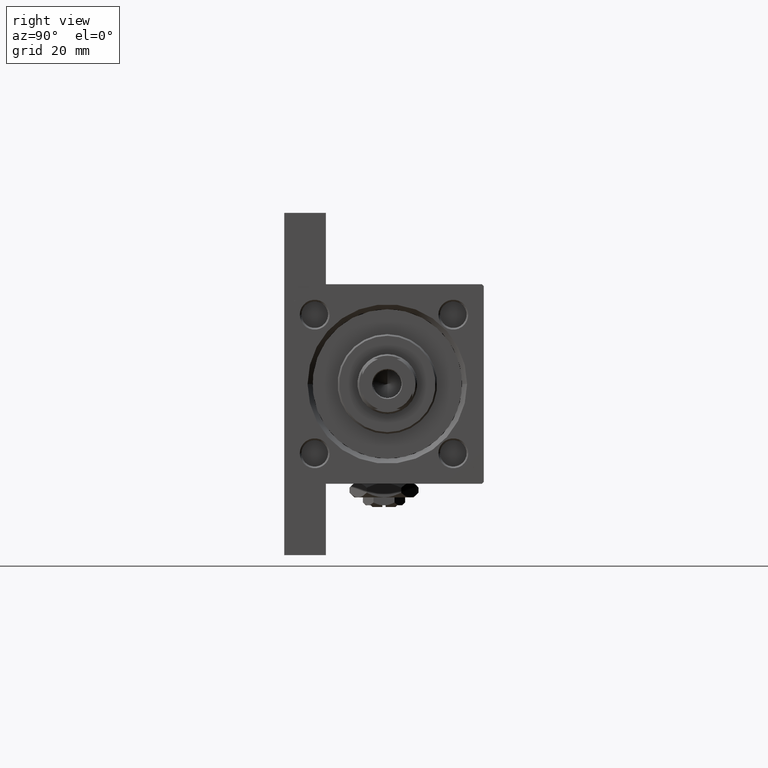
[diagram: clean part render]
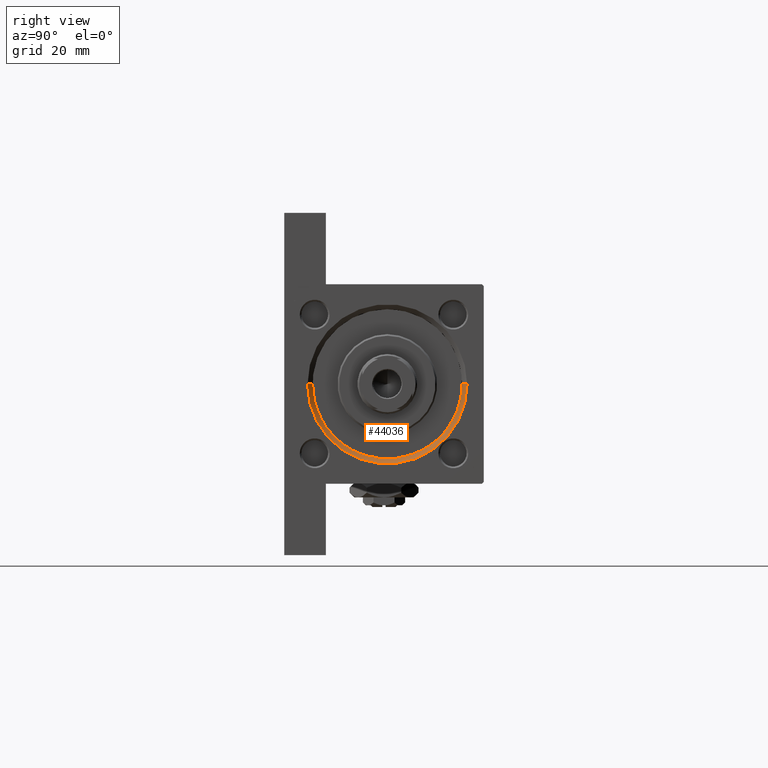
[diagram: same view with one face highlighted and labeled with its STEP entity id]
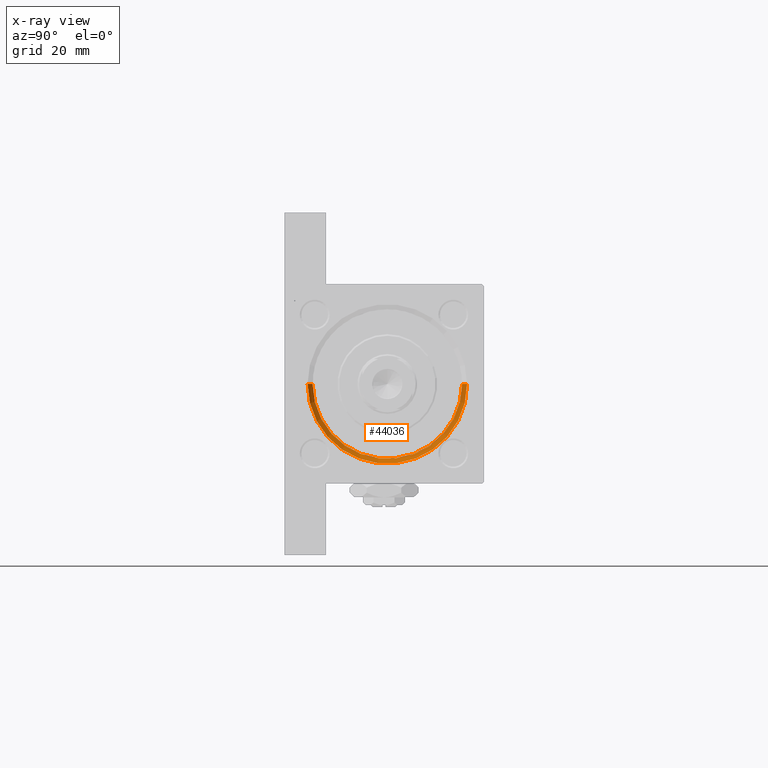
[diagram: x-ray of the same camera — body ghosted, the highlighted face saturated]
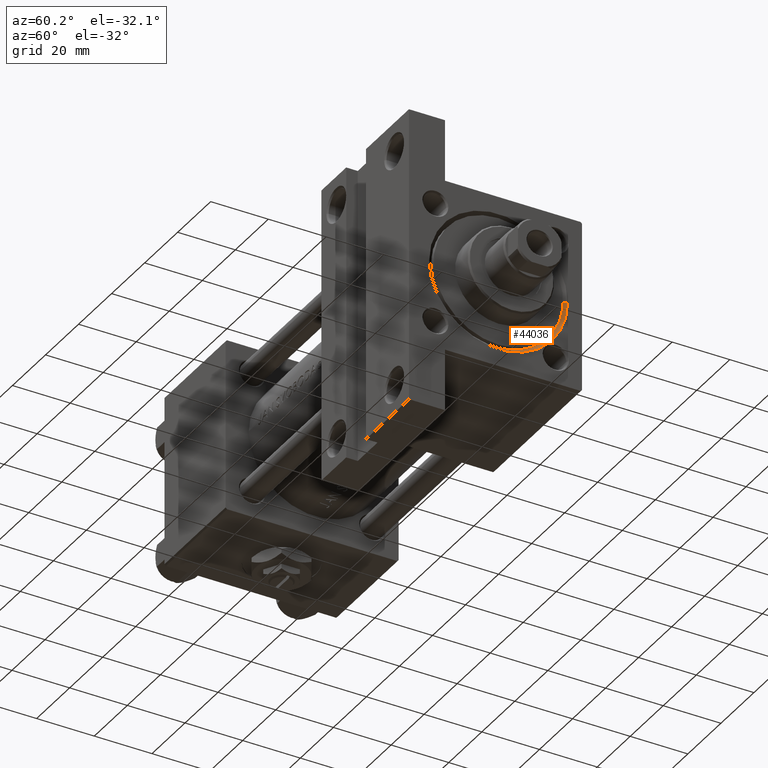
[diagram: same view with one face highlighted and labeled with its STEP entity id]
A machine part, right view. The second image highlights one B-rep face of the part: STEP entity #44036.
The next image is the same camera in x-ray: the body ghosted, the highlighted face saturated — about 0% of this face is hidden behind the body in this view.
A second angle (auxiliary view) of the same face is appended — the face is thin or edge-on in the first view.
In plain terms, the highlighted conical surface has half-angle 45 deg.
Its self-contained STEP definition (entity closure, byte-faithful):
#1877 = DIRECTION ( 'NONE',  ( 0.000000000000000000, 0.000000000000000000, 1.000000000000000000 ) ) ;
#3490 = EDGE_CURVE ( 'NONE', #41679, #27662, #43809, .T. ) ;
#4394 = EDGE_CURVE ( 'NONE', #49894, #35061, #50303, .T. ) ;
#7395 = EDGE_CURVE ( 'NONE', #49894, #27662, #27001, .T. ) ;
#7611 = DIRECTION ( 'NONE',  ( 0.7071067811865524577, 0.000000000000000000, -0.7071067811865426878 ) ) ;
#9289 = CARTESIAN_POINT ( 'NONE',  ( 148.0000000000000000, 2.939152317953652628E-15, 25.00000000000004619 ) ) ;
#13088 = DIRECTION ( 'NONE',  ( -1.000000000000000000, 0.000000000000000000, -0.000000000000000000 ) ) ;
#13525 = EDGE_CURVE ( 'NONE', #35061, #41679, #13659, .T. ) ;
#13659 = LINE ( 'NONE', #32793, #36085 ) ;
#14103 = AXIS2_PLACEMENT_3D ( 'NONE', #39342, #47212, #20204 ) ;
#16630 = FACE_OUTER_BOUND ( 'NONE', #38325, .T. ) ;
#18707 = VECTOR ( 'NONE', #7611, 1000.000000000000000 ) ;
#19093 = CARTESIAN_POINT ( 'NONE',  ( 146.4999999999999432, 0.000000000000000000, -21.49999999999999645 ) ) ;
#20181 = AXIS2_PLACEMENT_3D ( 'NONE', #36317, #40149, #1877 ) ;
#20204 = DIRECTION ( 'NONE',  ( 0.000000000000000000, 0.000000000000000000, -1.000000000000000000 ) ) ;
#26376 = CONICAL_SURFACE ( 'NONE', #14103, 22.50000000000000355, 0.7853981633974415066 ) ;
#27001 = LINE ( 'NONE', #19093, #18707 ) ;
#27662 = VERTEX_POINT ( 'NONE', #39227 ) ;
#28906 = DIRECTION ( 'NONE',  ( 0.000000000000000000, 0.000000000000000000, 1.000000000000000000 ) ) ;
#29215 = DIRECTION ( 'NONE',  ( 0.7071067811865524577, 8.659560562354874926E-17, 0.7071067811865426878 ) ) ;
#31116 = ORIENTED_EDGE ( 'NONE', *, *, #13525, .F. ) ;
#32793 = CARTESIAN_POINT ( 'NONE',  ( 146.4999999999999432, 2.755455298081545172E-15, 23.50000000000001066 ) ) ;
#34722 = CARTESIAN_POINT ( 'NONE',  ( 146.4999999999999432, 2.755455298081545172E-15, 23.50000000000001066 ) ) ;
#35061 = VERTEX_POINT ( 'NONE', #34722 ) ;
#35803 = CARTESIAN_POINT ( 'NONE',  ( 148.0000000000000000, 0.000000000000000000, 1.000000000000007772 ) ) ;
#36085 = VECTOR ( 'NONE', #29215, 1000.000000000000000 ) ;
#36317 = CARTESIAN_POINT ( 'NONE',  ( 146.4999999999999432, 0.000000000000000000, 1.000000000000007772 ) ) ;
#38325 = EDGE_LOOP ( 'NONE', ( #31116, #43896, #40073, #42616 ) ) ;
#39227 = CARTESIAN_POINT ( 'NONE',  ( 148.0000000000000000, 0.000000000000000000, -23.00000000000003197 ) ) ;
#39342 = CARTESIAN_POINT ( 'NONE',  ( 146.4999999999999432, 0.000000000000000000, 1.000000000000007772 ) ) ;
#40073 = ORIENTED_EDGE ( 'NONE', *, *, #7395, .T. ) ;
#40149 = DIRECTION ( 'NONE',  ( 1.000000000000000000, 0.000000000000000000, 0.000000000000000000 ) ) ;
#41679 = VERTEX_POINT ( 'NONE', #9289 ) ;
#42616 = ORIENTED_EDGE ( 'NONE', *, *, #3490, .F. ) ;
#43123 = CARTESIAN_POINT ( 'NONE',  ( 146.4999999999999432, 0.000000000000000000, -21.49999999999999645 ) ) ;
#43809 = CIRCLE ( 'NONE', #47075, 24.00000000000003908 ) ;
#43896 = ORIENTED_EDGE ( 'NONE', *, *, #4394, .F. ) ;
#44036 = ADVANCED_FACE ( 'NONE', ( #16630 ), #26376, .F. ) ;
#47075 = AXIS2_PLACEMENT_3D ( 'NONE', #35803, #13088, #28906 ) ;
#47212 = DIRECTION ( 'NONE',  ( 1.000000000000000000, 0.000000000000000000, 0.000000000000000000 ) ) ;
#49894 = VERTEX_POINT ( 'NONE', #43123 ) ;
#50303 = CIRCLE ( 'NONE', #20181, 22.50000000000000355 ) ;